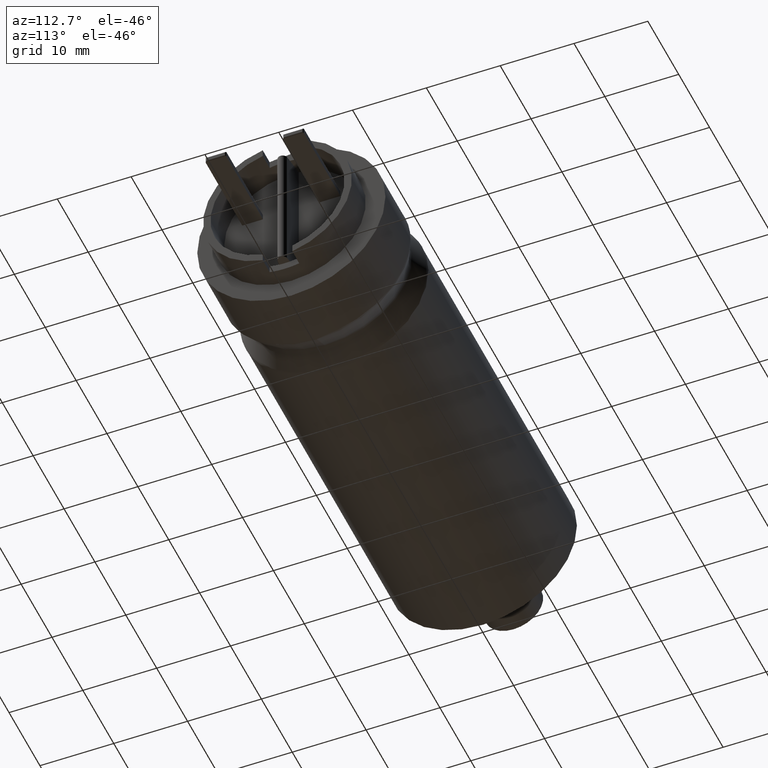
[diagram: clean part render]
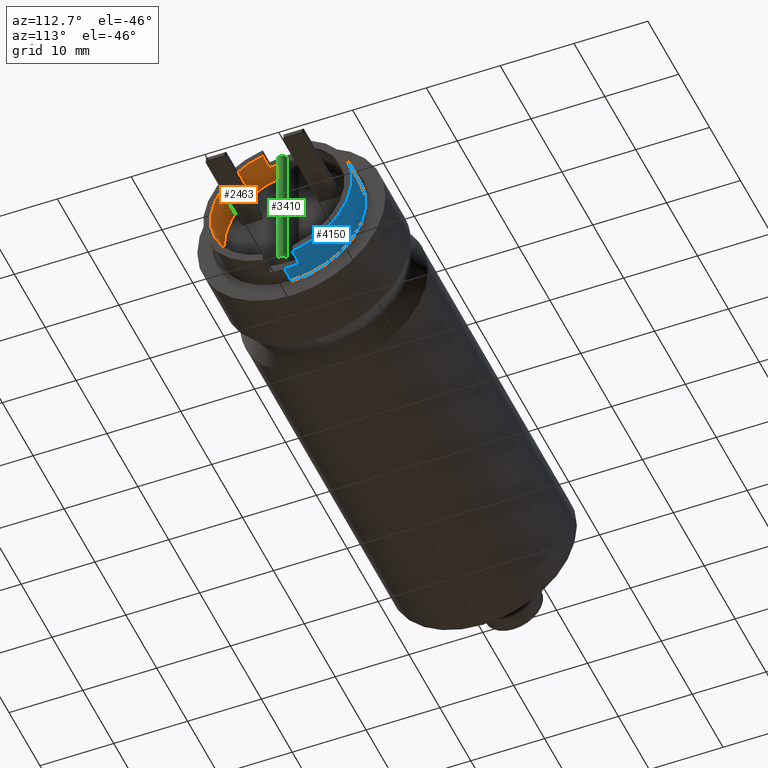
[diagram: same view with three faces highlighted in distinct colors, each labeled with its STEP entity id]
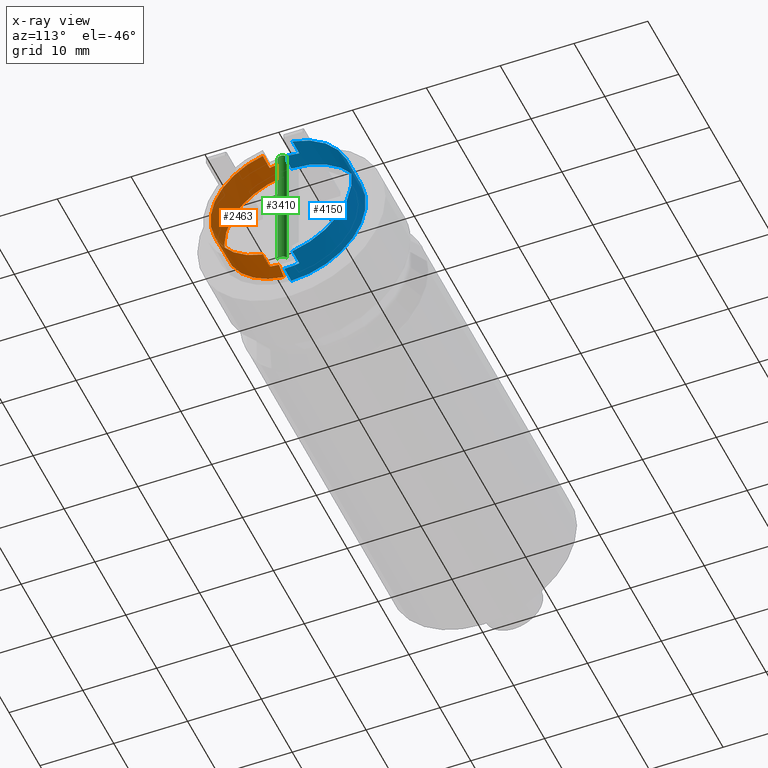
[diagram: x-ray of the same camera — body ghosted, the three highlighted faces saturated]
A machine part, auxiliary view with three faces highlighted in distinct colors.
The next image is the same camera in x-ray (body ghosted, the three faces saturated) — at least one of them is partly hidden behind the body in this view.
Their STEP definitions:

[orange] entity #2463 — the highlighted cylindrical surface (partial cylindrical patch) has radius 9.0878 mm, axis along (-1, -0, -0).
#11 = CIRCLE ( 'NONE', #4593, 9.087799999999999700 ) ;
#242 = VERTEX_POINT ( 'NONE', #3347 ) ;
#279 = ORIENTED_EDGE ( 'NONE', *, *, #2572, .F. ) ;
#327 = EDGE_CURVE ( 'NONE', #658, #714, #5434, .T. ) ;
#341 = DIRECTION ( 'NONE',  ( 0.0000000000000000000, 0.0000000000000000000, 1.000000000000000000 ) ) ;
#452 = ORIENTED_EDGE ( 'NONE', *, *, #327, .T. ) ;
#633 = LINE ( 'NONE', #700, #6253 ) ;
#653 = FACE_OUTER_BOUND ( 'NONE', #2107, .T. ) ;
#658 = VERTEX_POINT ( 'NONE', #4656 ) ;
#666 = VERTEX_POINT ( 'NONE', #1251 ) ;
#682 = ORIENTED_EDGE ( 'NONE', *, *, #5656, .T. ) ;
#700 = CARTESIAN_POINT ( 'NONE',  ( 66.50000000000000000, -2.000000000000000000, -8.864993448390135800 ) ) ;
#714 = VERTEX_POINT ( 'NONE', #5648 ) ;
#725 = VECTOR ( 'NONE', #1330, 1000.000000000000000 ) ;
#1100 = EDGE_CURVE ( 'NONE', #1115, #5716, #1950, .T. ) ;
#1115 = VERTEX_POINT ( 'NONE', #3300 ) ;
#1132 = CARTESIAN_POINT ( 'NONE',  ( 62.00000000000000000, -0.9999999999999995600, -9.032613621759761500 ) ) ;
#1170 = ORIENTED_EDGE ( 'NONE', *, *, #6158, .F. ) ;
#1210 = CARTESIAN_POINT ( 'NONE',  ( 62.00499999999999500, -0.9999999999999995600, -9.032613621759761500 ) ) ;
#1251 = CARTESIAN_POINT ( 'NONE',  ( 64.25000000000000000, -2.000000000000000000, 8.864993448390135800 ) ) ;
#1330 = DIRECTION ( 'NONE',  ( -1.000000000000000000, -0.0000000000000000000, -0.0000000000000000000 ) ) ;
#1492 = EDGE_CURVE ( 'NONE', #3945, #658, #11, .T. ) ;
#1656 = CARTESIAN_POINT ( 'NONE',  ( 62.74892847716531500, -0.9126250109973803600, -9.042286900465288800 ) ) ;
#1950 = CIRCLE ( 'NONE', #6021, 9.087800000000001400 ) ;
#1953 = DIRECTION ( 'NONE',  ( 1.000000000000000000, 0.0000000000000000000, 0.0000000000000000000 ) ) ;
#2021 = VERTEX_POINT ( 'NONE', #2201 ) ;
#2086 = CARTESIAN_POINT ( 'NONE',  ( 64.25000000000000000, -0.7375000000000000400, -9.057825489045372400 ) ) ;
#2107 = EDGE_LOOP ( 'NONE', ( #5836, #3382, #452, #6133, #279, #1170, #4354, #2834, #4237, #682 ) ) ;
#2196 = DIRECTION ( 'NONE',  ( -1.000000000000000000, -0.0000000000000000000, -0.0000000000000000000 ) ) ;
#2201 = CARTESIAN_POINT ( 'NONE',  ( 66.50000000000000000, -2.000000000000000000, 8.864993448390137600 ) ) ;
#2253 = CARTESIAN_POINT ( 'NONE',  ( 64.25000000000000000, -2.000000000000000000, -8.864993448390135800 ) ) ;
#2281 = CARTESIAN_POINT ( 'NONE',  ( 64.25000000000000000, 0.0000000000000000000, 0.0000000000000000000 ) ) ;
#2292 =( BOUNDED_CURVE ( )  B_SPLINE_CURVE ( 3, ( #2086, #5499, #1656, #1132 ),
 .UNSPECIFIED., .F., .T. ) 
 B_SPLINE_CURVE_WITH_KNOTS ( ( 4, 4 ),
 ( 4.793631075206037400, 4.822649893088324400 ),
 .UNSPECIFIED. ) 
 CURVE ( )  GEOMETRIC_REPRESENTATION_ITEM ( )  RATIONAL_B_SPLINE_CURVE ( ( 1.000000000000000000, 0.9999298269151595300, 0.9999298269151595300, 1.000000000000000000 ) ) 
 REPRESENTATION_ITEM ( '' )  );
#2409 = VERTEX_POINT ( 'NONE', #3844 ) ;
#2463 = ADVANCED_FACE ( 'NONE', ( #653 ), #2623, .F. ) ;
#2527 = CARTESIAN_POINT ( 'NONE',  ( 66.50000000000000000, 0.0000000000000000000, 0.0000000000000000000 ) ) ;
#2572 = EDGE_CURVE ( 'NONE', #666, #242, #5282, .T. ) ;
#2623 = CYLINDRICAL_SURFACE ( 'NONE', #4758, 9.087800000000001400 ) ;
#2672 = DIRECTION ( 'NONE',  ( -1.000000000000000000, -0.0000000000000000000, -0.0000000000000000000 ) ) ;
#2679 = CARTESIAN_POINT ( 'NONE',  ( 66.50000000000000000, 0.0000000000000000000, 0.0000000000000000000 ) ) ;
#2702 = DIRECTION ( 'NONE',  ( 0.0000000000000000000, 0.0000000000000000000, 1.000000000000000000 ) ) ;
#2736 = DIRECTION ( 'NONE',  ( -1.000000000000000000, -0.0000000000000000000, -0.0000000000000000000 ) ) ;
#2819 = AXIS2_PLACEMENT_3D ( 'NONE', #2527, #1953, #5931 ) ;
#2834 = ORIENTED_EDGE ( 'NONE', *, *, #3085, .F. ) ;
#2852 = VECTOR ( 'NONE', #2672, 1000.000000000000000 ) ;
#3085 = EDGE_CURVE ( 'NONE', #5716, #4313, #633, .T. ) ;
#3265 = CARTESIAN_POINT ( 'NONE',  ( 63.49898111067239600, -0.8251188704215535200, 9.050691446000048000 ) ) ;
#3300 = CARTESIAN_POINT ( 'NONE',  ( 64.25000000000000000, -0.7375000000000000400, -9.057825489045372400 ) ) ;
#3347 = CARTESIAN_POINT ( 'NONE',  ( 64.25000000000000000, -0.7375000000000000400, 9.057825489045372400 ) ) ;
#3382 = ORIENTED_EDGE ( 'NONE', *, *, #1492, .T. ) ;
#3767 = LINE ( 'NONE', #5662, #5432 ) ;
#3774 = DIRECTION ( 'NONE',  ( -1.000000000000000000, -0.0000000000000000000, -0.0000000000000000000 ) ) ;
#3844 = CARTESIAN_POINT ( 'NONE',  ( 62.00000000000000000, -0.9999999999999995600, -9.032613621759761500 ) ) ;
#3945 = VERTEX_POINT ( 'NONE', #5063 ) ;
#3998 = DIRECTION ( 'NONE',  ( 0.0000000000000000000, 0.0000000000000000000, 1.000000000000000000 ) ) ;
#4099 = DIRECTION ( 'NONE',  ( 1.000000000000000000, 0.0000000000000000000, 0.0000000000000000000 ) ) ;
#4182 = CARTESIAN_POINT ( 'NONE',  ( 62.00499999999999500, 0.0000000000000000000, 0.0000000000000000000 ) ) ;
#4207 = CARTESIAN_POINT ( 'NONE',  ( 64.25000000000000000, -0.7375000000000000400, 9.057825489045372400 ) ) ;
#4237 = ORIENTED_EDGE ( 'NONE', *, *, #1100, .F. ) ;
#4313 = VERTEX_POINT ( 'NONE', #5356 ) ;
#4316 = EDGE_CURVE ( 'NONE', #2021, #4313, #4405, .T. ) ;
#4354 = ORIENTED_EDGE ( 'NONE', *, *, #4316, .T. ) ;
#4405 = CIRCLE ( 'NONE', #2819, 9.087800000000001400 ) ;
#4430 = CARTESIAN_POINT ( 'NONE',  ( 62.00499999999999500, -0.9999999999999995600, 9.032613621759761500 ) ) ;
#4476 = AXIS2_PLACEMENT_3D ( 'NONE', #5459, #4961, #3998 ) ;
#4593 = AXIS2_PLACEMENT_3D ( 'NONE', #4182, #2736, #4605 ) ;
#4605 = DIRECTION ( 'NONE',  ( 0.0000000000000000000, 0.0000000000000000000, 1.000000000000000000 ) ) ;
#4656 = CARTESIAN_POINT ( 'NONE',  ( 62.00499999999999500, -0.9999999999999995600, 9.032613621759761500 ) ) ;
#4700 = CARTESIAN_POINT ( 'NONE',  ( 62.00000000000000000, -0.9999999999999995600, 9.032613621759761500 ) ) ;
#4758 = AXIS2_PLACEMENT_3D ( 'NONE', #2679, #2196, #2702 ) ;
#4873 =( BOUNDED_CURVE ( )  B_SPLINE_CURVE ( 3, ( #4207, #3265, #6178, #4700 ),
 .UNSPECIFIED., .F., .T. ) 
 B_SPLINE_CURVE_WITH_KNOTS ( ( 4, 4 ),
 ( 4.793631075206037400, 4.822649893088324400 ),
 .UNSPECIFIED. ) 
 CURVE ( )  GEOMETRIC_REPRESENTATION_ITEM ( )  RATIONAL_B_SPLINE_CURVE ( ( 1.000000000000000000, 0.9999298269151595300, 0.9999298269151595300, 1.000000000000000000 ) ) 
 REPRESENTATION_ITEM ( '' )  );
#4961 = DIRECTION ( 'NONE',  ( -1.000000000000000000, -0.0000000000000000000, -0.0000000000000000000 ) ) ;
#5063 = CARTESIAN_POINT ( 'NONE',  ( 62.00499999999999500, -0.9999999999999995600, -9.032613621759761500 ) ) ;
#5184 = DIRECTION ( 'NONE',  ( -1.000000000000000000, -0.0000000000000000000, -0.0000000000000000000 ) ) ;
#5282 = CIRCLE ( 'NONE', #4476, 9.087800000000001400 ) ;
#5310 = EDGE_CURVE ( 'NONE', #242, #714, #4873, .T. ) ;
#5356 = CARTESIAN_POINT ( 'NONE',  ( 66.50000000000000000, -2.000000000000000000, -8.864993448390135800 ) ) ;
#5432 = VECTOR ( 'NONE', #5184, 1000.000000000000000 ) ;
#5434 = LINE ( 'NONE', #4430, #2852 ) ;
#5459 = CARTESIAN_POINT ( 'NONE',  ( 64.25000000000000000, 0.0000000000000000000, 0.0000000000000000000 ) ) ;
#5499 = CARTESIAN_POINT ( 'NONE',  ( 63.49898111067239600, -0.8251188704215535200, -9.050691446000048000 ) ) ;
#5648 = CARTESIAN_POINT ( 'NONE',  ( 62.00000000000000000, -0.9999999999999995600, 9.032613621759761500 ) ) ;
#5656 = EDGE_CURVE ( 'NONE', #1115, #2409, #2292, .T. ) ;
#5659 = LINE ( 'NONE', #1210, #725 ) ;
#5662 = CARTESIAN_POINT ( 'NONE',  ( 66.50000000000000000, -2.000000000000000000, 8.864993448390135800 ) ) ;
#5716 = VERTEX_POINT ( 'NONE', #2253 ) ;
#5836 = ORIENTED_EDGE ( 'NONE', *, *, #6078, .F. ) ;
#5931 = DIRECTION ( 'NONE',  ( 0.0000000000000000000, 0.0000000000000000000, -1.000000000000000000 ) ) ;
#6021 = AXIS2_PLACEMENT_3D ( 'NONE', #2281, #3774, #341 ) ;
#6078 = EDGE_CURVE ( 'NONE', #3945, #2409, #5659, .T. ) ;
#6133 = ORIENTED_EDGE ( 'NONE', *, *, #5310, .F. ) ;
#6158 = EDGE_CURVE ( 'NONE', #2021, #666, #3767, .T. ) ;
#6178 = CARTESIAN_POINT ( 'NONE',  ( 62.74892847716531500, -0.9126250109973803600, 9.042286900465288800 ) ) ;
#6253 = VECTOR ( 'NONE', #4099, 1000.000000000000000 ) ;

[blue] entity #4150 — the highlighted cylindrical surface (partial cylindrical patch) has radius 10.0878 mm, axis along (-1, -0, -0).
#103 = DIRECTION ( 'NONE',  ( 1.000000000000000000, 0.0000000000000000000, 0.0000000000000000000 ) ) ;
#207 = VERTEX_POINT ( 'NONE', #1376 ) ;
#229 = EDGE_CURVE ( 'NONE', #207, #6151, #1542, .T. ) ;
#376 = DIRECTION ( 'NONE',  ( -1.000000000000000000, -0.0000000000000000000, -0.0000000000000000000 ) ) ;
#382 = VERTEX_POINT ( 'NONE', #4853 ) ;
#399 = EDGE_LOOP ( 'NONE', ( #4029, #5311, #1895, #4948, #3505, #4691, #4863, #5646 ) ) ;
#723 = LINE ( 'NONE', #2809, #2224 ) ;
#789 = VECTOR ( 'NONE', #1691, 1000.000000000000000 ) ;
#931 = DIRECTION ( 'NONE',  ( 0.0000000000000000000, 0.0000000000000000000, 1.000000000000000000 ) ) ;
#1118 = CARTESIAN_POINT ( 'NONE',  ( 64.25000000000000000, 0.0000000000000000000, 10.08780000000000000 ) ) ;
#1202 = EDGE_CURVE ( 'NONE', #3390, #3868, #1718, .T. ) ;
#1203 = CIRCLE ( 'NONE', #2187, 10.08780000000000000 ) ;
#1315 = DIRECTION ( 'NONE',  ( -1.000000000000000000, -0.0000000000000000000, -0.0000000000000000000 ) ) ;
#1376 = CARTESIAN_POINT ( 'NONE',  ( 62.00000000000000000, 1.235399198043866800E-015, -10.08780000000000000 ) ) ;
#1411 = DIRECTION ( 'NONE',  ( 0.0000000000000000000, 0.0000000000000000000, 1.000000000000000000 ) ) ;
#1485 = DIRECTION ( 'NONE',  ( 0.0000000000000000000, 0.0000000000000000000, -1.000000000000000000 ) ) ;
#1542 = CIRCLE ( 'NONE', #4707, 10.08780000000000000 ) ;
#1544 = EDGE_CURVE ( 'NONE', #3390, #6151, #3986, .T. ) ;
#1691 = DIRECTION ( 'NONE',  ( -1.000000000000000000, -0.0000000000000000000, -0.0000000000000000000 ) ) ;
#1718 = CIRCLE ( 'NONE', #4836, 10.08780000000000000 ) ;
#1802 = CARTESIAN_POINT ( 'NONE',  ( 66.50000000000000000, 2.000000000000000000, 9.887553228175308500 ) ) ;
#1895 = ORIENTED_EDGE ( 'NONE', *, *, #229, .T. ) ;
#2041 = CARTESIAN_POINT ( 'NONE',  ( 62.00000000000000000, 0.0000000000000000000, 0.0000000000000000000 ) ) ;
#2187 = AXIS2_PLACEMENT_3D ( 'NONE', #2415, #4871, #5293 ) ;
#2205 = CARTESIAN_POINT ( 'NONE',  ( 64.25000000000000000, 1.999999999999999600, 9.887553228175310200 ) ) ;
#2224 = VECTOR ( 'NONE', #1315, 1000.000000000000000 ) ;
#2396 = DIRECTION ( 'NONE',  ( -1.000000000000000000, -0.0000000000000000000, -0.0000000000000000000 ) ) ;
#2415 = CARTESIAN_POINT ( 'NONE',  ( 66.50000000000000000, 0.0000000000000000000, 0.0000000000000000000 ) ) ;
#2516 = VECTOR ( 'NONE', #376, 1000.000000000000000 ) ;
#2577 = VERTEX_POINT ( 'NONE', #5868 ) ;
#2714 = CARTESIAN_POINT ( 'NONE',  ( 62.00000000000000000, 0.0000000000000000000, 10.08780000000000000 ) ) ;
#2728 = EDGE_CURVE ( 'NONE', #382, #4021, #723, .T. ) ;
#2745 = LINE ( 'NONE', #2763, #2516 ) ;
#2763 = CARTESIAN_POINT ( 'NONE',  ( 66.50000000000000000, 1.235399198043866800E-015, -10.08780000000000000 ) ) ;
#2809 = CARTESIAN_POINT ( 'NONE',  ( 66.50000000000000000, 2.000000000000000000, -9.887553228175308500 ) ) ;
#2985 = FACE_OUTER_BOUND ( 'NONE', #399, .T. ) ;
#3230 = VERTEX_POINT ( 'NONE', #3916 ) ;
#3246 = DIRECTION ( 'NONE',  ( 1.000000000000000000, 0.0000000000000000000, 0.0000000000000000000 ) ) ;
#3377 = CARTESIAN_POINT ( 'NONE',  ( 66.50000000000000000, 0.0000000000000000000, 0.0000000000000000000 ) ) ;
#3390 = VERTEX_POINT ( 'NONE', #1118 ) ;
#3505 = ORIENTED_EDGE ( 'NONE', *, *, #1202, .T. ) ;
#3799 = AXIS2_PLACEMENT_3D ( 'NONE', #3377, #3848, #931 ) ;
#3848 = DIRECTION ( 'NONE',  ( -1.000000000000000000, -0.0000000000000000000, -0.0000000000000000000 ) ) ;
#3868 = VERTEX_POINT ( 'NONE', #2205 ) ;
#3891 = DIRECTION ( 'NONE',  ( 0.0000000000000000000, 0.0000000000000000000, 1.000000000000000000 ) ) ;
#3916 = CARTESIAN_POINT ( 'NONE',  ( 66.50000000000000000, 2.000000000000000000, 9.887553228175310200 ) ) ;
#3986 = LINE ( 'NONE', #6055, #789 ) ;
#3993 = EDGE_CURVE ( 'NONE', #3868, #3230, #4574, .T. ) ;
#4021 = VERTEX_POINT ( 'NONE', #5210 ) ;
#4029 = ORIENTED_EDGE ( 'NONE', *, *, #4190, .T. ) ;
#4037 = AXIS2_PLACEMENT_3D ( 'NONE', #4372, #2396, #3891 ) ;
#4078 = EDGE_CURVE ( 'NONE', #2577, #207, #2745, .T. ) ;
#4129 = EDGE_CURVE ( 'NONE', #382, #3230, #1203, .T. ) ;
#4150 = ADVANCED_FACE ( 'NONE', ( #2985 ), #5178, .T. ) ;
#4190 = EDGE_CURVE ( 'NONE', #4021, #2577, #5938, .T. ) ;
#4191 = VECTOR ( 'NONE', #3246, 1000.000000000000000 ) ;
#4339 = DIRECTION ( 'NONE',  ( -1.000000000000000000, -0.0000000000000000000, -0.0000000000000000000 ) ) ;
#4372 = CARTESIAN_POINT ( 'NONE',  ( 64.25000000000000000, 0.0000000000000000000, 0.0000000000000000000 ) ) ;
#4574 = LINE ( 'NONE', #1802, #4191 ) ;
#4691 = ORIENTED_EDGE ( 'NONE', *, *, #3993, .T. ) ;
#4707 = AXIS2_PLACEMENT_3D ( 'NONE', #2041, #103, #1485 ) ;
#4836 = AXIS2_PLACEMENT_3D ( 'NONE', #5788, #4339, #1411 ) ;
#4853 = CARTESIAN_POINT ( 'NONE',  ( 66.50000000000000000, 2.000000000000000000, -9.887553228175308500 ) ) ;
#4863 = ORIENTED_EDGE ( 'NONE', *, *, #4129, .F. ) ;
#4871 = DIRECTION ( 'NONE',  ( 1.000000000000000000, 0.0000000000000000000, 0.0000000000000000000 ) ) ;
#4948 = ORIENTED_EDGE ( 'NONE', *, *, #1544, .F. ) ;
#5178 = CYLINDRICAL_SURFACE ( 'NONE', #3799, 10.08780000000000000 ) ;
#5210 = CARTESIAN_POINT ( 'NONE',  ( 64.25000000000000000, 1.999999999999999600, -9.887553228175308500 ) ) ;
#5293 = DIRECTION ( 'NONE',  ( 0.0000000000000000000, 0.0000000000000000000, -1.000000000000000000 ) ) ;
#5311 = ORIENTED_EDGE ( 'NONE', *, *, #4078, .T. ) ;
#5646 = ORIENTED_EDGE ( 'NONE', *, *, #2728, .T. ) ;
#5788 = CARTESIAN_POINT ( 'NONE',  ( 64.25000000000000000, 0.0000000000000000000, 0.0000000000000000000 ) ) ;
#5868 = CARTESIAN_POINT ( 'NONE',  ( 64.25000000000000000, 1.235399198043866800E-015, -10.08780000000000000 ) ) ;
#5938 = CIRCLE ( 'NONE', #4037, 10.08780000000000000 ) ;
#6055 = CARTESIAN_POINT ( 'NONE',  ( 66.50000000000000000, 0.0000000000000000000, 10.08780000000000000 ) ) ;
#6151 = VERTEX_POINT ( 'NONE', #2714 ) ;

[green] entity #3410 — the highlighted cylindrical surface (edge-blend (fillet) strip) has radius 0.6822 mm, axis along (-0, -0, -1).
#20 = CARTESIAN_POINT ( 'NONE',  ( 65.00000000000000000, -0.6500000000000000200, -9.064524744298520200 ) ) ;
#24 = B_SPLINE_CURVE_WITH_KNOTS ( 'NONE', 3,
 ( #4566, #216, #663, #6053, #4054, #3624 ),
 .UNSPECIFIED., .F., .F.,
 ( 4, 2, 4 ),
 ( 0.0008577078784841360000, 0.001285939801355763300, 0.001714171724227390700 ),
 .UNSPECIFIED. ) ;
#158 = DIRECTION ( 'NONE',  ( -1.000000000000000000, 0.0000000000000000000, 0.0000000000000000000 ) ) ;
#216 = CARTESIAN_POINT ( 'NONE',  ( 65.47516474626557700, -0.1432183693604008900, 9.087799999999999700 ) ) ;
#271 = EDGE_CURVE ( 'NONE', #2962, #5221, #2995, .T. ) ;
#315 = VERTEX_POINT ( 'NONE', #3481 ) ;
#571 = DIRECTION ( 'NONE',  ( -0.0000000000000000000, -0.0000000000000000000, -1.000000000000000000 ) ) ;
#663 = CARTESIAN_POINT ( 'NONE',  ( 65.42811451791908400, -0.2869882849223972000, 9.084000634085695600 ) ) ;
#792 = B_SPLINE_CURVE_WITH_KNOTS ( 'NONE', 3,
 ( #5421, #4396, #1469, #1956, #2513, #5379 ),
 .UNSPECIFIED., .F., .F.,
 ( 4, 2, 4 ),
 ( 0.0000000000000000000, 0.0004288539392420680000, 0.0008577078784841360000 ),
 .UNSPECIFIED. ) ;
#801 = CARTESIAN_POINT ( 'NONE',  ( 65.00000000000000000, -0.6500000000000000200, 12.75099999999999800 ) ) ;
#1008 = CARTESIAN_POINT ( 'NONE',  ( 65.00000000000000000, 0.6500000000000000200, -9.064524744298514800 ) ) ;
#1055 = CARTESIAN_POINT ( 'NONE',  ( 65.42830497594887600, -0.2866168666135524000, -9.084013887750199200 ) ) ;
#1414 = CARTESIAN_POINT ( 'NONE',  ( 65.00000000000000000, 0.6500000000000000200, -9.064524744298514800 ) ) ;
#1462 = CARTESIAN_POINT ( 'NONE',  ( 65.13804309512565300, 0.6060385256831529700, -9.067677138837888500 ) ) ;
#1469 = CARTESIAN_POINT ( 'NONE',  ( 65.25862775355001600, 0.5189139028187370600, 9.073718711068712800 ) ) ;
#1558 = ORIENTED_EDGE ( 'NONE', *, *, #5625, .T. ) ;
#1945 = CARTESIAN_POINT ( 'NONE',  ( 65.25845602002534900, 0.5190366848657928000, -9.073710022578833200 ) ) ;
#1956 = CARTESIAN_POINT ( 'NONE',  ( 65.42862201471892500, 0.2864706008944318300, 9.084028703221944700 ) ) ;
#2095 = DIRECTION ( 'NONE',  ( -0.0000000000000000000, -0.0000000000000000000, -1.000000000000000000 ) ) ;
#2127 = CYLINDRICAL_SURFACE ( 'NONE', #6152, 0.6821650187525535300 ) ;
#2198 = EDGE_CURVE ( 'NONE', #315, #2962, #5068, .T. ) ;
#2265 = ORIENTED_EDGE ( 'NONE', *, *, #2579, .T. ) ;
#2287 = CARTESIAN_POINT ( 'NONE',  ( 65.00000000000000000, -0.6500000000000000200, 9.064524744298514800 ) ) ;
#2296 = ORIENTED_EDGE ( 'NONE', *, *, #271, .F. ) ;
#2452 = CARTESIAN_POINT ( 'NONE',  ( 65.25989715774156300, -0.5174637925145063600, -9.073791311491708800 ) ) ;
#2513 = CARTESIAN_POINT ( 'NONE',  ( 65.47516474626564800, 0.1434263972197323800, 9.087800000000003200 ) ) ;
#2579 = EDGE_CURVE ( 'NONE', #315, #5090, #792, .T. ) ;
#2727 = VERTEX_POINT ( 'NONE', #2287 ) ;
#2962 = VERTEX_POINT ( 'NONE', #1414 ) ;
#2995 = B_SPLINE_CURVE_WITH_KNOTS ( 'NONE', 3,
 ( #1008, #1462, #1945, #3504, #5374, #5927, #1055, #2452, #3028, #20 ),
 .UNSPECIFIED., .F., .F.,
 ( 4, 2, 2, 2, 4 ),
 ( 0.0000000000000000000, 0.0004285429310568474700, 0.0008570858621136951500, 0.001285628793170542900, 0.001714171724227390700 ),
 .UNSPECIFIED. ) ;
#3028 = CARTESIAN_POINT ( 'NONE',  ( 65.13804167466331300, -0.6060389780463988400, -9.067677106399866500 ) ) ;
#3101 = CARTESIAN_POINT ( 'NONE',  ( 65.00000000000000000, -0.6500000000000000200, -9.064524744298520200 ) ) ;
#3162 = VECTOR ( 'NONE', #5644, 1000.000000000000000 ) ;
#3297 = FACE_OUTER_BOUND ( 'NONE', #4124, .T. ) ;
#3315 = LINE ( 'NONE', #801, #3162 ) ;
#3410 = ADVANCED_FACE ( 'NONE', ( #3297 ), #2127, .T. ) ;
#3481 = CARTESIAN_POINT ( 'NONE',  ( 65.00000000000000000, 0.6499999999999999100, 9.064524744298514800 ) ) ;
#3504 = CARTESIAN_POINT ( 'NONE',  ( 65.42842379941564000, 0.2868534282913102200, -9.084014958417977700 ) ) ;
#3597 = CARTESIAN_POINT ( 'NONE',  ( 64.79299972751304900, 0.0000000000000000000, 12.75099999999999800 ) ) ;
#3624 = CARTESIAN_POINT ( 'NONE',  ( 65.00000000000000000, -0.6500000000000000200, 9.064524744298514800 ) ) ;
#4054 = CARTESIAN_POINT ( 'NONE',  ( 65.13794149312346300, -0.6060708820556994800, 9.067674818623437700 ) ) ;
#4085 = CARTESIAN_POINT ( 'NONE',  ( 65.47516474626614500, -4.733558333069745600E-014, 9.087800000000042300 ) ) ;
#4124 = EDGE_LOOP ( 'NONE', ( #4240, #2265, #1558, #5097, #2296 ) ) ;
#4240 = ORIENTED_EDGE ( 'NONE', *, *, #2198, .F. ) ;
#4396 = CARTESIAN_POINT ( 'NONE',  ( 65.13814327769637200, 0.6060066213455566100, 9.067679426637859300 ) ) ;
#4566 = CARTESIAN_POINT ( 'NONE',  ( 65.47516474626614500, -4.733558333069745600E-014, 9.087800000000042300 ) ) ;
#4612 = VECTOR ( 'NONE', #571, 1000.000000000000000 ) ;
#5068 = LINE ( 'NONE', #5414, #4612 ) ;
#5090 = VERTEX_POINT ( 'NONE', #4085 ) ;
#5097 = ORIENTED_EDGE ( 'NONE', *, *, #6199, .T. ) ;
#5221 = VERTEX_POINT ( 'NONE', #3101 ) ;
#5374 = CARTESIAN_POINT ( 'NONE',  ( 65.47503335602262100, 0.1439356741535875500, -9.087790137350037200 ) ) ;
#5379 = CARTESIAN_POINT ( 'NONE',  ( 65.47516474626614500, -4.733558333069745600E-014, 9.087800000000042300 ) ) ;
#5414 = CARTESIAN_POINT ( 'NONE',  ( 65.00000000000000000, 0.6500000000000001300, 12.75099999999999800 ) ) ;
#5421 = CARTESIAN_POINT ( 'NONE',  ( 65.00000000000000000, 0.6499999999999999100, 9.064524744298514800 ) ) ;
#5625 = EDGE_CURVE ( 'NONE', #5090, #2727, #24, .T. ) ;
#5644 = DIRECTION ( 'NONE',  ( -0.0000000000000000000, -0.0000000000000000000, -1.000000000000000000 ) ) ;
#5927 = CARTESIAN_POINT ( 'NONE',  ( 65.47529556560401400, -0.1426875538921902900, -9.087809819795692700 ) ) ;
#6053 = CARTESIAN_POINT ( 'NONE',  ( 65.25972084018222600, -0.5175948953226025000, 9.073782305085790900 ) ) ;
#6152 = AXIS2_PLACEMENT_3D ( 'NONE', #3597, #2095, #158 ) ;
#6199 = EDGE_CURVE ( 'NONE', #2727, #5221, #3315, .T. ) ;